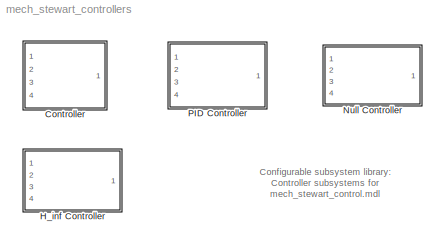
MODEL mech_stewart_controllers
KIND library
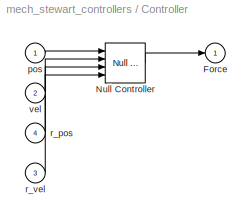
BLOCK [SubSystem] Controller 
  BlockChoice = Null Controller
  FunctionWithSeparateData = off
  MaskHideContents = off
  MemberBlocks = H_inf Controller,Null Controller,PID Controller
  MinAlgLoopOccurrences = off
  Opaque = off
  Ports = [4, 1]
  PropExecContextOutsideSubsystem = off
  RTWSystemCode = Auto
  RequestExecContextInheritance = off
  TemplateBlock = self
BLOCK [Outport] Controller /Force
  IconDisplay = Port number
  OutDataType = sfix(16)
  OutScaling = 2^0
BLOCK [Reference] Controller /Null Controller  REF=mech_stewart_controllers/Null Controller  (lib defined in mdl_599bb43ff82a, mdl_9159fbd9fc75)
  FunctionWithSeparateData = off
  Ports = [4, 1]
  RTWMemSecDataConstants = Inherit from model
  RTWMemSecDataInternal = Inherit from model
  RTWMemSecDataParameters = Inherit from model
  RTWMemSecFuncExecute = Inherit from model
  RTWMemSecFuncInitTerm = Inherit from model
  ShowPortLabels = FromPortIcon
  SourceBlock = mech_stewart_controllers/Null Controller
  SystemSampleTime = -1
BLOCK [Inport] Controller /pos
  IconDisplay = Port number
  OutDataType = sfix(16)
  OutScaling = 2^0
BLOCK [Inport] Controller /r_pos
  IconDisplay = Port number
  OutDataType = sfix(16)
  OutScaling = 2^0
  Port = 4
BLOCK [Inport] Controller /r_vel
  IconDisplay = Port number
  OutDataType = sfix(16)
  OutScaling = 2^0
  Port = 3
BLOCK [Inport] Controller /vel
  IconDisplay = Port number
  OutDataType = sfix(16)
  OutScaling = 2^0
  Port = 2
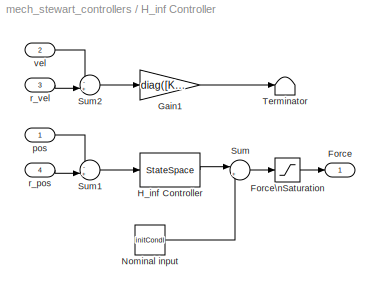
BLOCK [SubSystem] H_inf Controller
  FunctionWithSeparateData = off
  MaskHideContents = off
  MinAlgLoopOccurrences = off
  Opaque = off
  Ports = [4, 1]
  PropExecContextOutsideSubsystem = off
  RTWSystemCode = Auto
  RequestExecContextInheritance = off
BLOCK [Outport] H_inf Controller/Force
  IconDisplay = Port number
  OutDataType = sfix(16)
  OutScaling = 2^0
BLOCK [Saturate] H_inf Controller/Force\nSaturation
  LinearizeAsGain = off
  LowerLimit = -force_act_max
  UpperLimit = force_act_max
  ZeroCross = off
BLOCK [Gain] H_inf Controller/Gain1
  Gain = diag([Kd,Kd,Kd,Kd,Kd,Kd])
  Multiplication = Matrix(K*u)
  OutDataType = sfix(16)
  OutScaling = 2^0
  ParameterDataType = sfix(16)
  ParameterScaling = 2^0
BLOCK [StateSpace] H_inf Controller/H_inf Controller
  A = Ak
  B = Bk
  C = Ck
  D = Dk
BLOCK [Constant] H_inf Controller/Nominal input
  OutDataType = sfix(16)
  OutScaling = 2^0
  Value = initCondI
BLOCK [Sum] H_inf Controller/Sum
  IconShape = round
  InputSameDT = off
  Inputs = |++
  OutDataType = sfix(16)
  OutDataTypeMode = Inherit via internal rule
  OutDataTypeStr = Inherit: Inherit via internal rule
  OutScaling = 2^0
  Ports = [2, 1]
  SaturateOnIntegerOverflow = off
BLOCK [Sum] H_inf Controller/Sum1
  IconShape = round
  Inputs = -+|
  OutDataType = sfix(16)
  OutScaling = 2^0
  Ports = [2, 1]
BLOCK [Sum] H_inf Controller/Sum2
  IconShape = round
  Inputs = -+|
  OutDataType = sfix(16)
  OutScaling = 2^0
  Ports = [2, 1]
BLOCK [Terminator] H_inf Controller/Terminator
BLOCK [Inport] H_inf Controller/pos
  IconDisplay = Port number
  OutDataType = sfix(16)
  OutScaling = 2^0
BLOCK [Inport] H_inf Controller/r_pos
  IconDisplay = Port number
  OutDataType = sfix(16)
  OutScaling = 2^0
  Port = 4
BLOCK [Inport] H_inf Controller/r_vel
  IconDisplay = Port number
  OutDataType = sfix(16)
  OutScaling = 2^0
  Port = 3
BLOCK [Inport] H_inf Controller/vel
  IconDisplay = Port number
  OutDataType = sfix(16)
  OutScaling = 2^0
  Port = 2
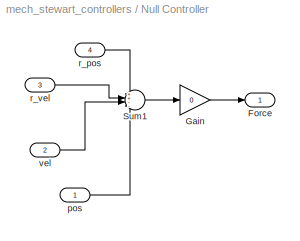
BLOCK [SubSystem] Null Controller
  FunctionWithSeparateData = off
  MaskHideContents = off
  MaskIconFrame = on
  MaskIconOpaque = on
  MaskIconRotate = none
  MaskIconUnits = autoscale
  MinAlgLoopOccurrences = off
  Opaque = off
  Ports = [4, 1]
  PropExecContextOutsideSubsystem = off
  RTWSystemCode = Auto
  RequestExecContextInheritance = off
BLOCK [Outport] Null Controller/Force
  IconDisplay = Port number
  OutDataType = sfix(16)
  OutScaling = 2^0
BLOCK [Gain] Null Controller/Gain
  Gain = 0
  OutDataType = sfix(16)
  OutDataTypeMode = Inherit via internal rule
  OutDataTypeStr = Inherit: Inherit via internal rule
  OutScaling = 2^0
  ParamDataTypeStr = Inherit: Inherit via internal rule
  ParameterDataType = sfix(16)
  ParameterDataTypeMode = Inherit via internal rule
  ParameterScaling = 2^0
  SaturateOnIntegerOverflow = off
BLOCK [Sum] Null Controller/Sum1
  IconShape = round
  Inputs = ++--
  OutDataType = sfix(16)
  OutScaling = 2^0
  Ports = [4, 1]
BLOCK [Inport] Null Controller/pos
  IconDisplay = Port number
  OutDataType = sfix(16)
  OutScaling = 2^0
BLOCK [Inport] Null Controller/r_pos
  IconDisplay = Port number
  OutDataType = sfix(16)
  OutScaling = 2^0
  Port = 4
BLOCK [Inport] Null Controller/r_vel
  IconDisplay = Port number
  OutDataType = sfix(16)
  OutScaling = 2^0
  Port = 3
BLOCK [Inport] Null Controller/vel
  IconDisplay = Port number
  OutDataType = sfix(16)
  OutScaling = 2^0
  Port = 2
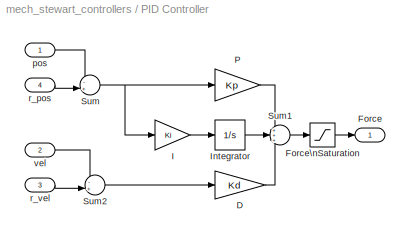
BLOCK [SubSystem] PID Controller
  FunctionWithSeparateData = off
  MaskHideContents = off
  MaskIconFrame = on
  MaskIconOpaque = on
  MaskIconRotate = none
  MaskIconUnits = autoscale
  MinAlgLoopOccurrences = off
  Opaque = off
  Ports = [4, 1]
  PropExecContextOutsideSubsystem = off
  RTWSystemCode = Auto
  RequestExecContextInheritance = off
BLOCK [Gain] PID Controller/   I
  Gain = Ki
  OutDataType = sfix(16)
  OutScaling = 2^0
  ParameterDataType = sfix(16)
  ParameterScaling = 2^0
BLOCK [Gain] PID Controller/D
  Gain = Kd
  OutDataType = sfix(16)
  OutScaling = 2^0
  ParameterDataType = sfix(16)
  ParameterScaling = 2^0
BLOCK [Outport] PID Controller/Force
  IconDisplay = Port number
  OutDataType = sfix(16)
  OutScaling = 2^0
BLOCK [Saturate] PID Controller/Force\nSaturation
  LinearizeAsGain = off
  LowerLimit = -force_act_max
  UpperLimit = force_act_max
  ZeroCross = off
BLOCK [Integrator] PID Controller/Integrator
  InitialCondition = initCondI
  Ports = [1, 1]
  ZeroCross = off
BLOCK [Gain] PID Controller/P
  Gain = Kp
  OutDataType = sfix(16)
  OutScaling = 2^0
  ParameterDataType = sfix(16)
  ParameterScaling = 2^0
BLOCK [Sum] PID Controller/Sum
  IconShape = round
  Inputs = -+|
  OutDataType = sfix(16)
  OutScaling = 2^0
  Ports = [2, 1]
BLOCK [Sum] PID Controller/Sum1
  IconShape = round
  Inputs = +++
  OutDataType = sfix(16)
  OutScaling = 2^0
  Ports = [3, 1]
BLOCK [Sum] PID Controller/Sum2
  IconShape = round
  Inputs = -+|
  OutDataType = sfix(16)
  OutScaling = 2^0
  Ports = [2, 1]
BLOCK [Inport] PID Controller/pos
  IconDisplay = Port number
  OutDataType = sfix(16)
  OutScaling = 2^0
BLOCK [Inport] PID Controller/r_pos
  IconDisplay = Port number
  OutDataType = sfix(16)
  OutScaling = 2^0
  Port = 4
BLOCK [Inport] PID Controller/r_vel
  IconDisplay = Port number
  OutDataType = sfix(16)
  OutScaling = 2^0
  Port = 3
BLOCK [Inport] PID Controller/vel
  IconDisplay = Port number
  OutDataType = sfix(16)
  OutScaling = 2^0
  Port = 2
ANNOTATION (root): Configurable subsystem library:\nController subsystems for\nmech_stewart_control.mdl
LINE Controller /Null Controller:1 -> Controller /Force:1
LINE Controller /pos:1 -> Controller /Null Controller:1
LINE Controller /r_pos:1 -> Controller /Null Controller:3
LINE Controller /r_vel:1 -> Controller /Null Controller:4
LINE Controller /vel:1 -> Controller /Null Controller:2
LINE H_inf Controller/Force\nSaturation:1 -> H_inf Controller/Force:1
LINE H_inf Controller/Gain1:1 -> H_inf Controller/Terminator:1
LINE H_inf Controller/H_inf Controller:1 -> H_inf Controller/Sum:1
LINE H_inf Controller/Nominal input:1 -> H_inf Controller/Sum:2
LINE H_inf Controller/Sum1:1 -> H_inf Controller/H_inf Controller:1
LINE H_inf Controller/Sum2:1 -> H_inf Controller/Gain1:1
LINE H_inf Controller/Sum:1 -> H_inf Controller/Force\nSaturation:1
LINE H_inf Controller/pos:1 -> H_inf Controller/Sum1:1
LINE H_inf Controller/r_pos:1 -> H_inf Controller/Sum1:2
LINE H_inf Controller/r_vel:1 -> H_inf Controller/Sum2:2
LINE H_inf Controller/vel:1 -> H_inf Controller/Sum2:1
LINE Null Controller/Gain:1 -> Null Controller/Force:1
LINE Null Controller/Sum1:1 -> Null Controller/Gain:1
LINE Null Controller/pos:1 -> Null Controller/Sum1:4
LINE Null Controller/r_pos:1 -> Null Controller/Sum1:1
LINE Null Controller/r_vel:1 -> Null Controller/Sum1:2
LINE Null Controller/vel:1 -> Null Controller/Sum1:3
LINE PID Controller/   I:1 -> PID Controller/Integrator:1
LINE PID Controller/D:1 -> PID Controller/Sum1:3
LINE PID Controller/Force\nSaturation:1 -> PID Controller/Force:1
LINE PID Controller/Integrator:1 -> PID Controller/Sum1:2
LINE PID Controller/P:1 -> PID Controller/Sum1:1
LINE PID Controller/Sum1:1 -> PID Controller/Force\nSaturation:1
LINE PID Controller/Sum2:1 -> PID Controller/D:1
NET PID Controller/Sum:1 -> PID Controller/   I:1, PID Controller/P:1
LINE PID Controller/pos:1 -> PID Controller/Sum:1
LINE PID Controller/r_pos:1 -> PID Controller/Sum:2
LINE PID Controller/r_vel:1 -> PID Controller/Sum2:2
LINE PID Controller/vel:1 -> PID Controller/Sum2:1
note: NET lines group one-source signal fan-out (src -> all destinations, sorted); 1:1 wires keep LINE
